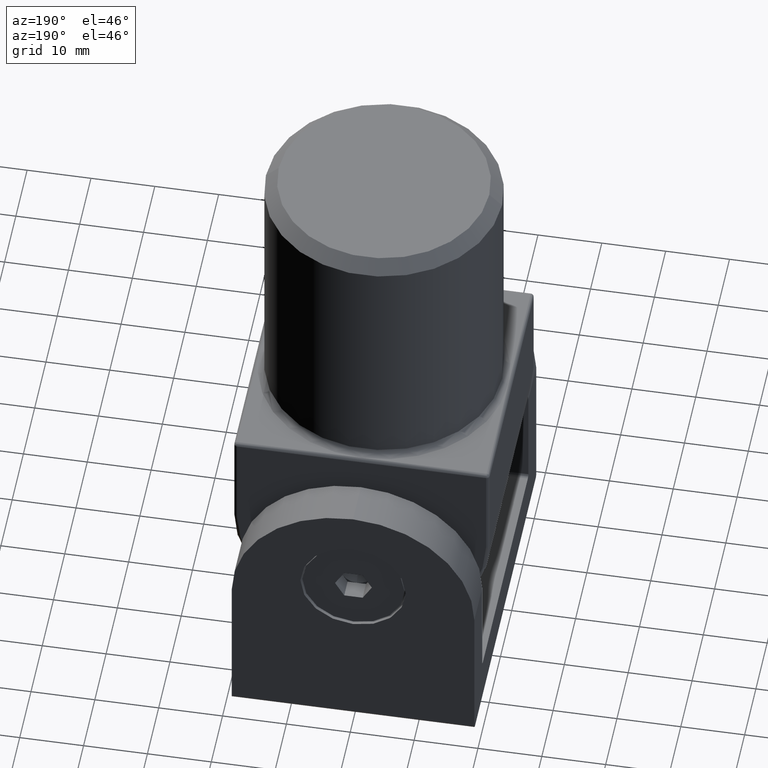
[diagram: clean part render]
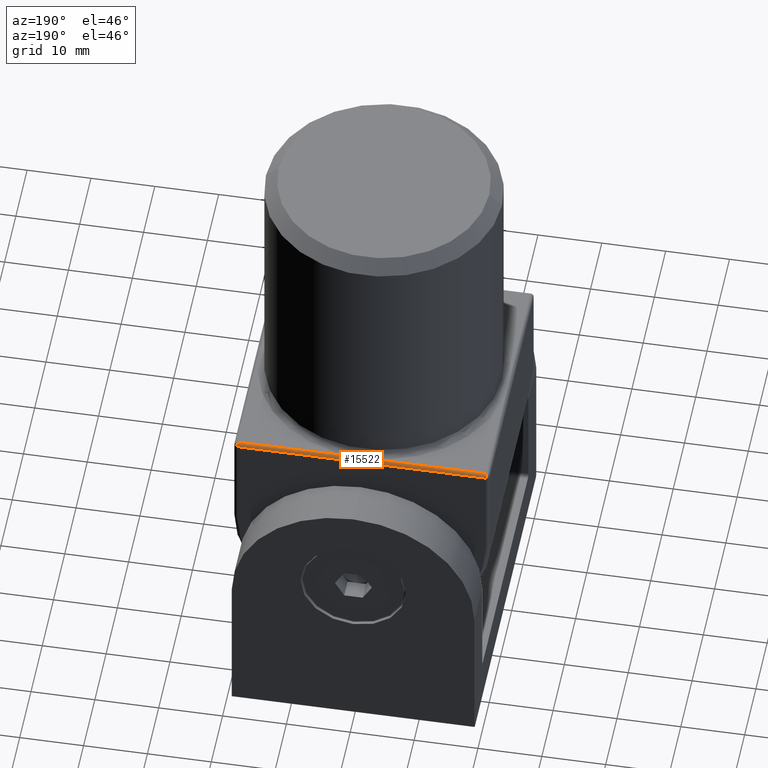
[diagram: same view with one face highlighted and labeled with its STEP entity id]
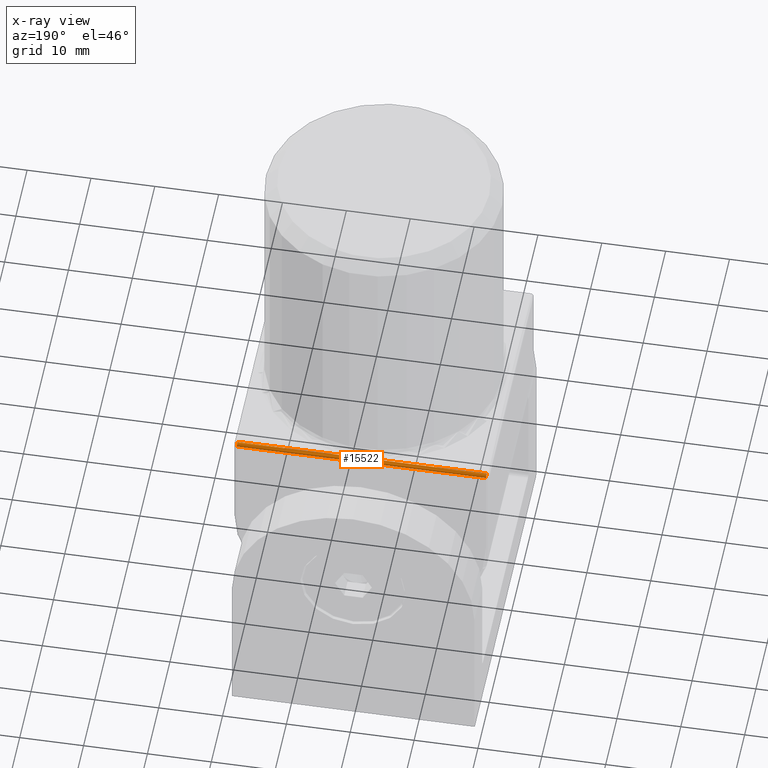
[diagram: x-ray of the same camera — body ghosted, the highlighted face saturated]
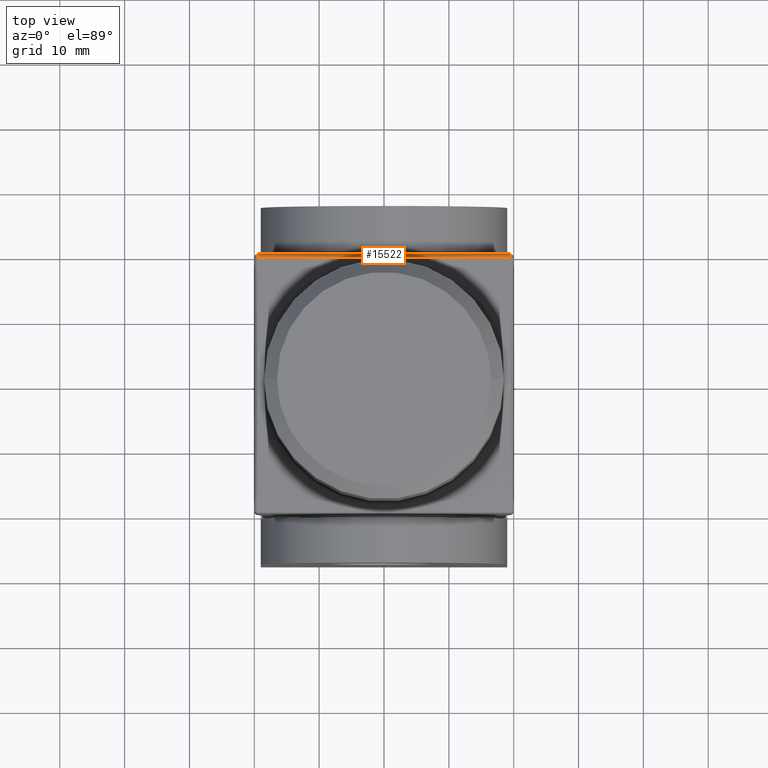
[diagram: same view with one face highlighted and labeled with its STEP entity id]
A machine part, auxiliary view. The second image highlights one B-rep face of the part: STEP entity #15522.
The next image is the same camera in x-ray: the body ghosted, the highlighted face saturated — about 0% of this face is hidden behind the body in this view.
A second angle (top view) of the same face is appended — the face is thin or edge-on in the first view.
In plain terms, the highlighted cylindrical surface (edge-blend (fillet) strip) has radius 0.5 mm, axis along (-1, 0, 0).
Its self-contained STEP definition (entity closure, byte-faithful):
#399 = DIRECTION ( 'NONE',  ( -1.000000000000000000, -0.000000000000000000, -0.000000000000000000 ) ) ;
#479 = ORIENTED_EDGE ( 'NONE', *, *, #12961, .F. ) ;
#525 = CARTESIAN_POINT ( 'NONE',  ( -19.50000000000000000, 19.50000000000000000, 0.000000000000000000 ) ) ;
#1853 = CARTESIAN_POINT ( 'NONE',  ( -19.50000000000000000, 19.50000000000000000, -0.5000000000000000000 ) ) ;
#2270 = LINE ( 'NONE', #14609, #14545 ) ;
#3017 = FACE_OUTER_BOUND ( 'NONE', #16923, .T. ) ;
#3122 = ORIENTED_EDGE ( 'NONE', *, *, #4599, .F. ) ;
#3304 = CARTESIAN_POINT ( 'NONE',  ( -20.00000000000000000, 19.50000000000000000, 0.000000000000000000 ) ) ;
#3775 = CARTESIAN_POINT ( 'NONE',  ( -20.00000000000000000, 19.50000000000000000, 0.000000000000000000 ) ) ;
#4026 = VECTOR ( 'NONE', #6790, 1000.000000000000000 ) ;
#4477 = ORIENTED_EDGE ( 'NONE', *, *, #6349, .T. ) ;
#4599 = EDGE_CURVE ( 'NONE', #16751, #9349, #10178, .T. ) ;
#4916 = CARTESIAN_POINT ( 'NONE',  ( 19.50000000000000000, 19.50000000000000000, -0.5000000000000004441 ) ) ;
#5328 = DIRECTION ( 'NONE',  ( 0.000000000000000000, 0.000000000000000000, -1.000000000000000000 ) ) ;
#5433 = AXIS2_PLACEMENT_3D ( 'NONE', #13969, #17342, #16035 ) ;
#6349 = EDGE_CURVE ( 'NONE', #8754, #11315, #19399, .T. ) ;
#6790 = DIRECTION ( 'NONE',  ( -1.000000000000000000, -0.000000000000000000, -0.000000000000000000 ) ) ;
#7410 = EDGE_CURVE ( 'NONE', #8754, #16751, #10265, .T. ) ;
#8754 = VERTEX_POINT ( 'NONE', #15900 ) ;
#8786 = VECTOR ( 'NONE', #399, 1000.000000000000000 ) ;
#9349 = VERTEX_POINT ( 'NONE', #525 ) ;
#10178 = LINE ( 'NONE', #3775, #4026 ) ;
#10265 = LINE ( 'NONE', #3304, #8786 ) ;
#10293 = AXIS2_PLACEMENT_3D ( 'NONE', #4916, #19464, #5328 ) ;
#10507 = ORIENTED_EDGE ( 'NONE', *, *, #7410, .F. ) ;
#11315 = VERTEX_POINT ( 'NONE', #16333 ) ;
#11449 = DIRECTION ( 'NONE',  ( 1.000000000000000000, -0.000000000000000000, 0.000000000000000000 ) ) ;
#12961 = EDGE_CURVE ( 'NONE', #9349, #18361, #13895, .T. ) ;
#13895 = CIRCLE ( 'NONE', #14878, 0.5000000000000000000 ) ;
#13969 = CARTESIAN_POINT ( 'NONE',  ( 0.000000000000000000, 19.50000000000000000, -0.5000000000000004441 ) ) ;
#14545 = VECTOR ( 'NONE', #11449, 1000.000000000000000 ) ;
#14609 = CARTESIAN_POINT ( 'NONE',  ( 20.00000000000000000, 20.00000000000000000, -0.5000000000000004441 ) ) ;
#14810 = CARTESIAN_POINT ( 'NONE',  ( -19.50000000000000000, 20.00000000000000000, -0.5000000000000004441 ) ) ;
#14878 = AXIS2_PLACEMENT_3D ( 'NONE', #1853, #18899, #17401 ) ;
#15522 = ADVANCED_FACE ( 'NONE', ( #3017 ), #16558, .T. ) ;
#15900 = CARTESIAN_POINT ( 'NONE',  ( 19.50000000000000000, 19.50000000000000000, 0.000000000000000000 ) ) ;
#16035 = DIRECTION ( 'NONE',  ( 0.000000000000000000, 0.000000000000000000, 1.000000000000000000 ) ) ;
#16095 = CARTESIAN_POINT ( 'NONE',  ( 0.000000000000000000, 19.50000000000000000, 0.000000000000000000 ) ) ;
#16133 = EDGE_CURVE ( 'NONE', #18361, #11315, #2270, .T. ) ;
#16333 = CARTESIAN_POINT ( 'NONE',  ( 19.50000000000000000, 20.00000000000000000, -0.5000000000000004441 ) ) ;
#16558 = CYLINDRICAL_SURFACE ( 'NONE', #5433, 0.5000000000000000000 ) ;
#16751 = VERTEX_POINT ( 'NONE', #16095 ) ;
#16923 = EDGE_LOOP ( 'NONE', ( #4477, #17743, #479, #3122, #10507 ) ) ;
#17342 = DIRECTION ( 'NONE',  ( -1.000000000000000000, 0.000000000000000000, 0.000000000000000000 ) ) ;
#17401 = DIRECTION ( 'NONE',  ( 0.000000000000000000, 0.000000000000000000, 1.000000000000000000 ) ) ;
#17743 = ORIENTED_EDGE ( 'NONE', *, *, #16133, .F. ) ;
#18361 = VERTEX_POINT ( 'NONE', #14810 ) ;
#18899 = DIRECTION ( 'NONE',  ( -1.000000000000000000, 0.000000000000000000, 0.000000000000000000 ) ) ;
#19399 = CIRCLE ( 'NONE', #10293, 0.5000000000000000000 ) ;
#19464 = DIRECTION ( 'NONE',  ( -1.000000000000000000, -0.000000000000000000, -0.000000000000000000 ) ) ;